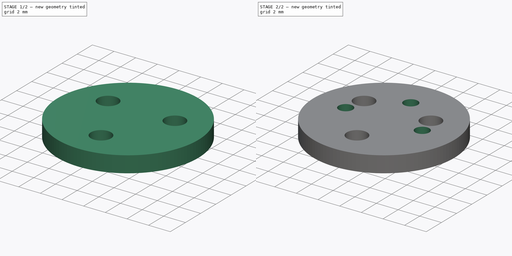
[diagram: build sequence overview — one tinted view per stage of 2, left to right]
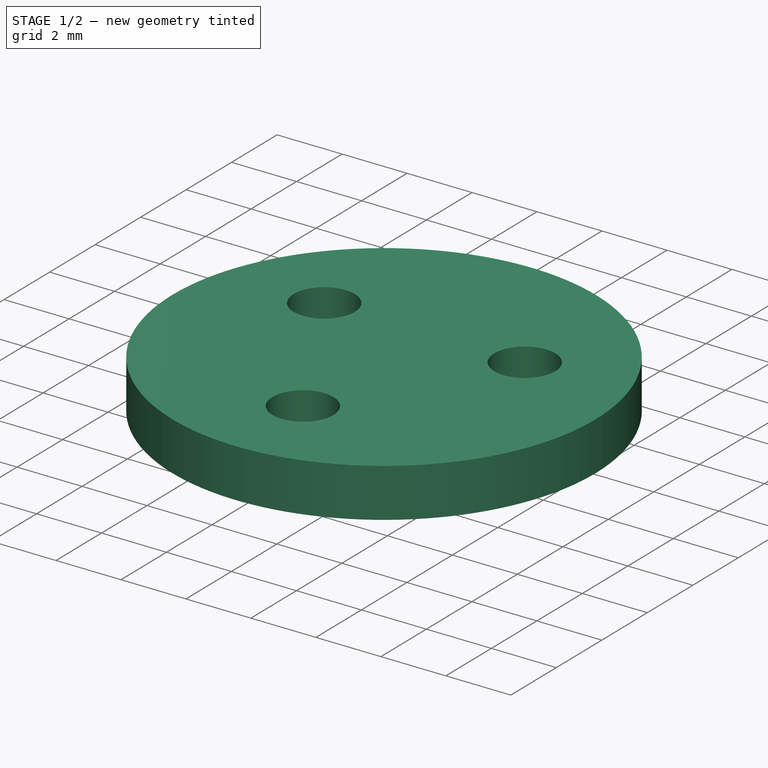
[diagram: stage 1 of 2 — iso view after this stage's code; geometry added in this stage tinted green]
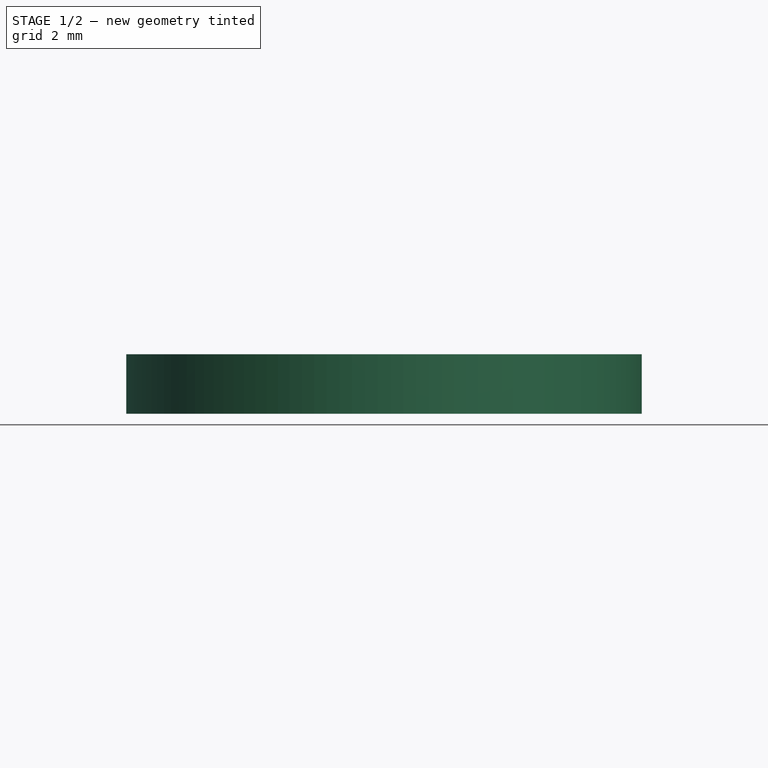
[diagram: stage 1 of 2 — front view after this stage's code; geometry added in this stage tinted green]
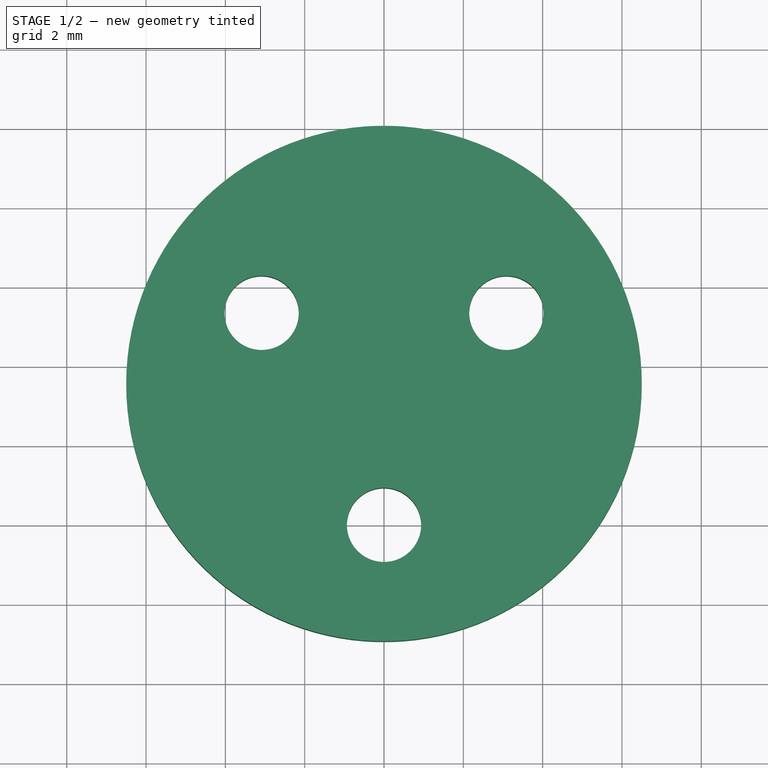
[diagram: stage 1 of 2 — top view after this stage's code; geometry added in this stage tinted green]
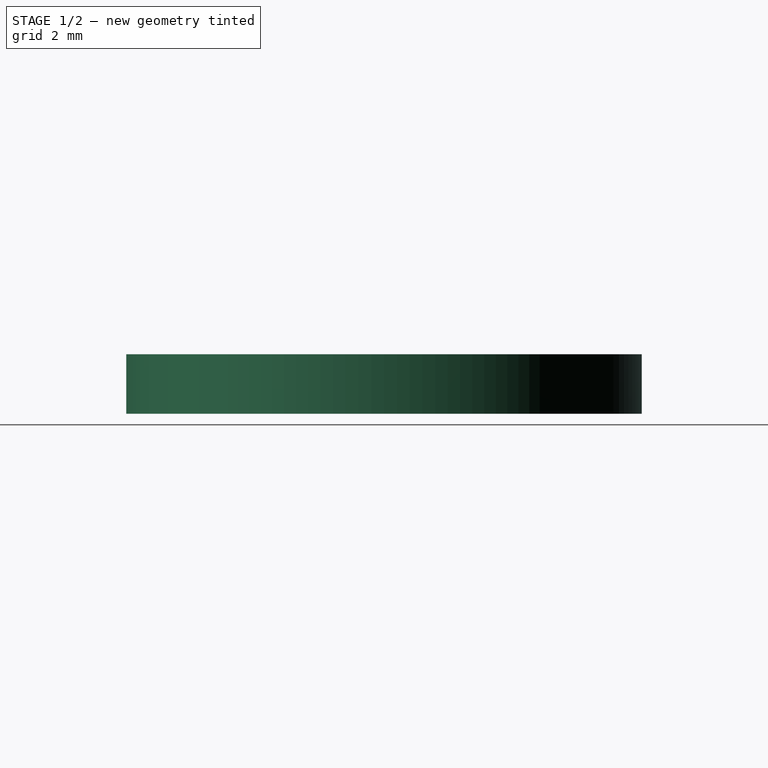
[diagram: stage 1 of 2 — right view after this stage's code; geometry added in this stage tinted green]
FCSTD DOCUMENT  (FreeCAD 0.19R24267 +99 (Git))
Label: MotorConverter
License: All rights reserved
LicenseURL: http://en.wikipedia.org/wiki/All_rights_reserved
objects: Sketcher::SketchObject×2, PartDesign::Pad×1, PartDesign::Pocket×1, PartDesign::Body×1
note: 7 computed .brp shape members not serialized (recipe doc carries the construction recipe); baked Part::Feature solids carry a one-line shape summary decoded from their .brp

FEATURE [Sketcher::SketchObject] Sketch
  FullyConstrained = true
  MapMode = 5
  Support = -> [XY_Plane]
  sketch-geometry (18):
    g0: Circle CenterX=-3.08628 CenterY=5.34559 CenterZ=0 NormalX=0 NormalY=0 NormalZ=1 AngleXU=0 Radius=0.936276
    g1: Circle CenterX=3.08628 CenterY=5.34559 CenterZ=0 NormalX=0 NormalY=0 NormalZ=1 AngleXU=0 Radius=0.936276
    g2: Circle CenterX=0 CenterY=0 CenterZ=0 NormalX=0 NormalY=0 NormalZ=1 AngleXU=0 Radius=0.936276
    g3: LineSegment StartX=-3.08628 StartY=5.34559 StartZ=0 EndX=3.08628 EndY=5.34559 EndZ=0
    g4: GeomPoint X=-2.15 Y=5.34559 Z=0
    g5: GeomPoint X=2.15 Y=5.34559 Z=0
    g6: LineSegment StartX=-3.08628 StartY=5.34559 StartZ=0 EndX=0 EndY=0 EndZ=0
    g7: LineSegment StartX=3.08628 StartY=5.34559 StartZ=0 EndX=0 EndY=0 EndZ=0
    g8: GeomPoint X=-4.02255 Y=5.34559 Z=0
    g9: GeomPoint X=4.02255 Y=5.34559 Z=0
    g10: GeomPoint X=1.54314 Y=2.67279 Z=0
    g11: GeomPoint X=-1.54314 Y=2.67279 Z=0
    g12: LineSegment StartX=3.08628 StartY=5.34559 StartZ=0 EndX=-1.54314 EndY=2.67279 EndZ=0
    g13: LineSegment StartX=-3.08628 StartY=5.34559 StartZ=0 EndX=1.54314 EndY=2.67279 EndZ=0
    g14: GeomPoint X=4e-16 Y=3.56372 Z=0
    g15: Circle CenterX=4e-16 CenterY=3.56372 CenterZ=0 NormalX=0 NormalY=0 NormalZ=1 AngleXU=0 Radius=6.5
    g16: LineSegment StartX=-1.54314 StartY=2.67279 StartZ=0 EndX=5.62917 EndY=6.81372 EndZ=0
    g17: GeomPoint X=3.89711 Y=5.81372 Z=0
  constraints (38):
    c: Coincident(g3,g0)
    c: Coincident(g3,g1)
    c: PointOnObject(g4,g0)
    c: PointOnObject(g5,g1)
    c: PointOnObject(g4,g3)
    c: PointOnObject(g5,g3)
    c: Equal(g0,g1)
    c: Symmetric(g0,g1,g-2)
    c: Coincident(g6,g0)
    c: Coincident(g6,g2)
    c: Coincident(g7,g1)
    c: Coincident(g7,g2)
    c: Equal(g3,g7)
    c: Equal(g0,g2)
    c: Coincident(g-1,g2)
    c: PointOnObject(g8,g0)
    c: PointOnObject(g9,g1)
    c: Horizontal(g8,g0)
    c: Horizontal(g1,g9)
    c: PointOnObject(g10,g7)
    c: PointOnObject(g11,g6)
    c: Coincident(g12,g1)
    c: Coincident(g12,g11)
    c: Perpendicular(g6,g12)
    c: Coincident(g13,g0)
    c: Coincident(g13,g10)
    c: Perpendicular(g7,g13)
    c: PointOnObject(g14,g12)
    c: PointOnObject(g14,g13)
    c: Coincident(g15,g14)
    c: Diameter(g15) = 13
    c: Coincident(g16,g11)
    c: PointOnObject(g16,g15)
    c: Parallel(g16,g12)
    c: PointOnObject(g17,g1)
    c: PointOnObject(g17,g16)
    c: Distance(g17,g16) = 2
    c: Distance(g4,g5) = 4.3
FEATURE [PartDesign::Pad] Pad
  Direction = (1,1,1)
  Length = 1.5
  Length2 = 100
  Profile = -> Sketch
  Type = 0
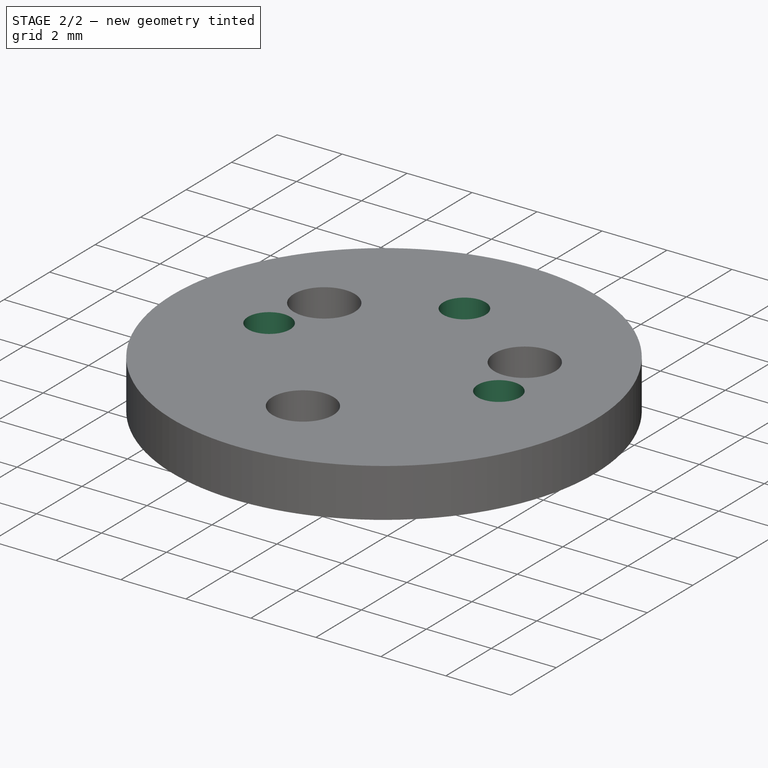
[diagram: stage 2 of 2 — iso view after this stage's code; geometry added in this stage tinted green]
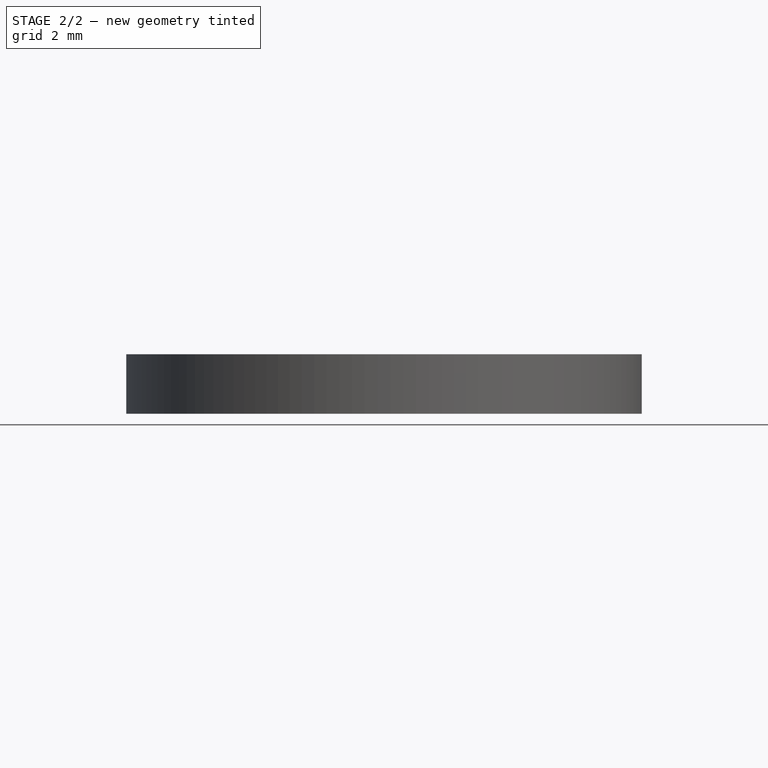
[diagram: stage 2 of 2 — front view after this stage's code; geometry added in this stage tinted green]
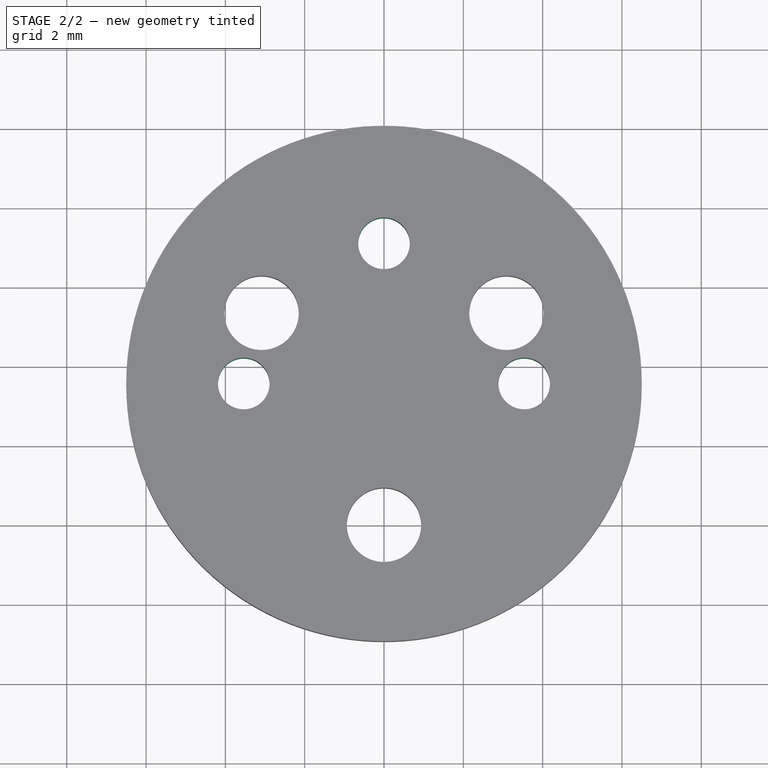
[diagram: stage 2 of 2 — top view after this stage's code; geometry added in this stage tinted green]
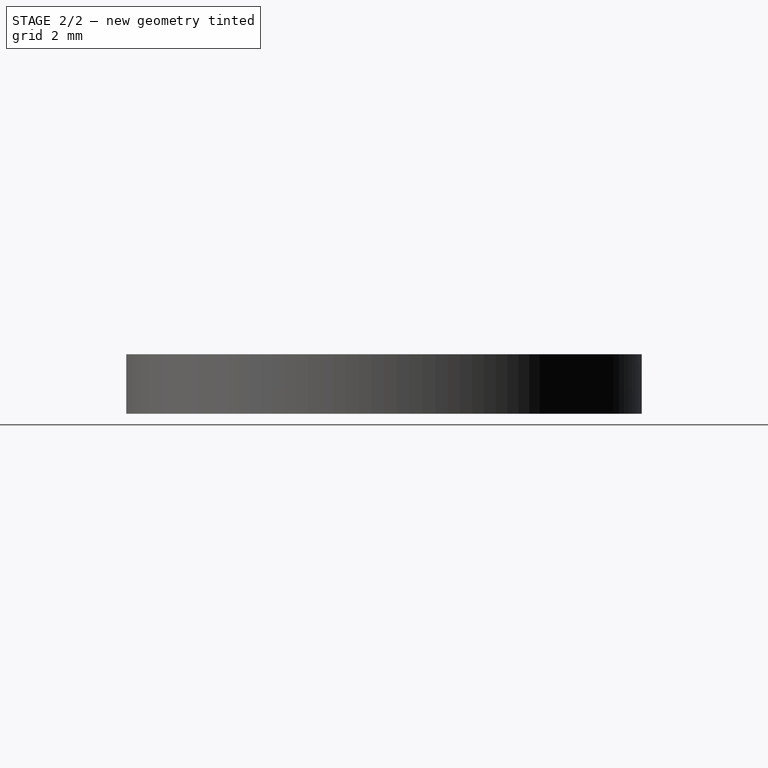
[diagram: stage 2 of 2 — right view after this stage's code; geometry added in this stage tinted green]
FEATURE [Sketcher::SketchObject] Sketch001
  ExternalGeometry = -> [Pad]
  FullyConstrained = true
  MapMode = 5
  Placement = pos=(0,0,1.5) rot=(0,0,1;0rad)
  Support = -> [Pad]
  sketch-geometry (11):
    g0: LineSegment StartX=3.53553 StartY=3.56372 StartZ=0 EndX=4e-16 EndY=7.09926 EndZ=0
    g1: LineSegment StartX=4e-16 StartY=7.09926 StartZ=0 EndX=-3.53553 EndY=3.56372 EndZ=0
    g2: LineSegment StartX=-3.53553 StartY=3.56372 StartZ=0 EndX=4e-16 EndY=0.0281904 EndZ=0
    g3: LineSegment StartX=4e-16 StartY=0.0281904 StartZ=0 EndX=3.53553 EndY=3.56372 EndZ=0
    g4: LineSegment StartX=4e-16 StartY=0.0281904 StartZ=0 EndX=4e-16 EndY=7.09926 EndZ=0
    g5: LineSegment StartX=-3.53553 StartY=3.56372 StartZ=0 EndX=3.53553 EndY=3.56372 EndZ=0
    g6: GeomPoint X=4e-16 Y=3.56372 Z=0
    g7: Circle CenterX=-3.53553 CenterY=3.56372 CenterZ=0 NormalX=0 NormalY=0 NormalZ=1 AngleXU=0 Radius=0.65
    g8: Circle CenterX=4e-16 CenterY=7.09926 CenterZ=0 NormalX=0 NormalY=0 NormalZ=1 AngleXU=0 Radius=0.65
    g9: Circle CenterX=3.53553 CenterY=3.56372 CenterZ=0 NormalX=0 NormalY=0 NormalZ=1 AngleXU=0 Radius=0.65
    g10: Circle CenterX=0 CenterY=0 CenterZ=0 NormalX=0 NormalY=0 NormalZ=1 AngleXU=0 Radius=0.65
  constraints (25):
    c: Coincident(g0,g1)
    c: Coincident(g1,g2)
    c: Coincident(g2,g3)
    c: Coincident(g3,g0)
    c: Distance(g2) = 5
    c: Distance(g1) = 5
    c: Perpendicular(g3,g2)
    c: Perpendicular(g0,g3)
    c: Perpendicular(g0,g1)
    c: Coincident(g4,g2)
    c: Coincident(g4,g0)
    c: Coincident(g5,g1)
    c: Coincident(g5,g0)
    c: PointOnObject(g6,g5)
    c: PointOnObject(g6,g4)
    c: Coincident(g6,g-3)
    c: Vertical(g4)
    c: Coincident(g7,g1)
    c: Diameter(g7) = 1.3
    c: Coincident(g8,g0)
    c: Coincident(g9,g0)
    c: Equal(g7,g8)
    c: Equal(g8,g9)
    c: Coincident(g10,g-1)
    c: Equal(g10,g7)
FEATURE [PartDesign::Pocket] Pocket
  BaseFeature = -> Pad
  Length = 5
  Length2 = 100
  Profile = -> Sketch001
  Type = 0
FEATURE [PartDesign::Body] Body
  Group = -> [Sketch,Pad,Sketch001,Pocket]
  Origin = -> Origin
  Placement = pos=(20,0,0) rot=(0,0,1;0rad)
  Tip = -> Pocket
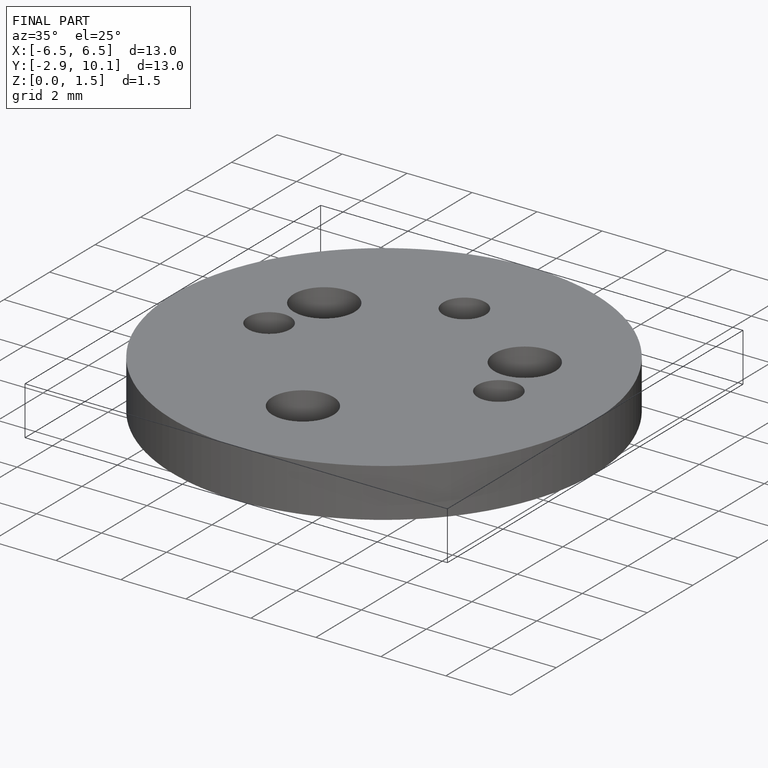
[diagram: finished part — iso view with bounding-box wireframe]
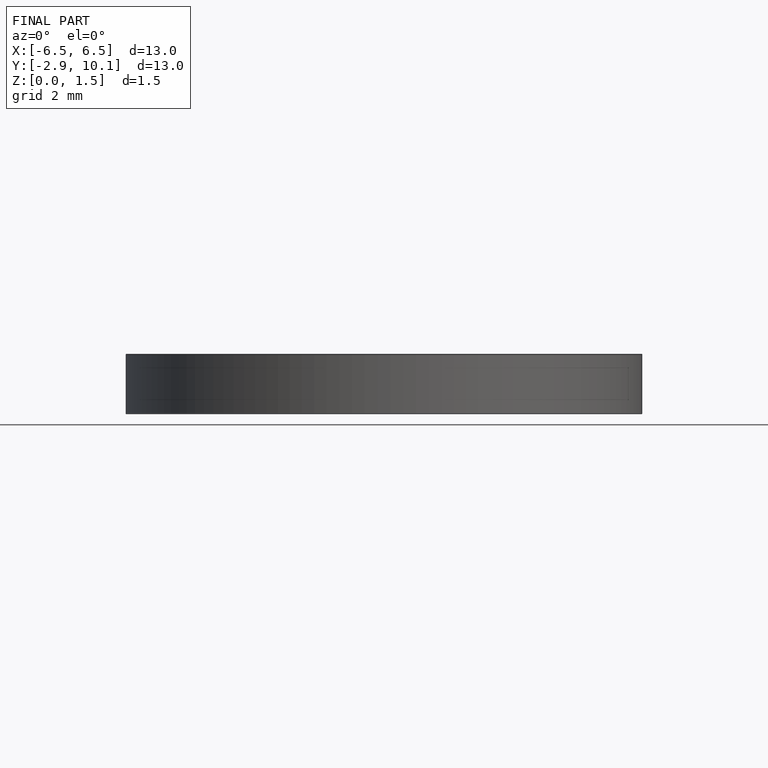
[diagram: finished part — front view with bounding-box wireframe]
